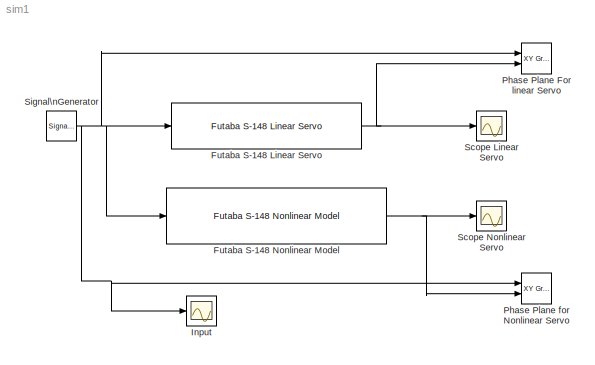
MODEL sim1
KIND model
CONFIG AbsTol = 1e-6
CONFIG FixedStep = auto
CONFIG MaxStep = .001
CONFIG RelTol = 1e-3
CONFIG Solver = ode45
CONFIG StartTime = 0.0
CONFIG StopTime = 1.0
BLOCK [Reference] Futaba S-148 Linear Servo  REF=AAE451Lib/Futaba S-148 Linear Servo
  Ports = [1, 1, 0, 0, 0]
  SourceBlock = AAE451Lib/Futaba S-148 Linear Servo
  SourceType = SubSystem
BLOCK [Reference] Futaba S-148 Nonlinear Model  REF=AAE451Lib/Futaba S-148 Nonlinear Model
  Ports = [1, 1, 0, 0, 0]
  SourceBlock = AAE451Lib/Futaba S-148 Nonlinear Model
  SourceType = SubSystem
BLOCK [Scope] Input
  Decimation = 1
  Floating = off
  Grid = on
  LimitMaxRows = on
  MaxRows = 5000
  Ports = [1, 0, 0, 0, 0]
  SampleInput = off
  SampleTime = 0
  SaveName = ScopeData
  SaveToWorkspace = off
  TickLabels = on
  TimeRange = 0.5
  YMax = 35
  YMin = -35
  ZoomMode = on
BLOCK [Reference] Phase Plane For linear Servo  REF=simulink/Sinks/XY Graph
  Ports = [2, 0, 0, 0, 0]
  SourceBlock = simulink/Sinks/XY Graph
  SourceType = XY scope.
  st = .01
  xmax = 35
  xmin = -35
  ymax = 35
  ymin = -35
BLOCK [Reference] Phase Plane for Nonlinear  Servo  REF=simulink/Sinks/XY Graph
  Ports = [2, 0, 0, 0, 0]
  SourceBlock = simulink/Sinks/XY Graph
  SourceType = XY scope.
  st = .001
  xmax = 35
  xmin = -35
  ymax = 35
  ymin = -35
BLOCK [Scope] Scope Linear  Servo
  Decimation = 1
  Floating = off
  Grid = on
  LimitMaxRows = on
  MaxRows = 5000
  Ports = [1, 0, 0, 0, 0]
  SampleInput = off
  SampleTime = 0
  SaveName = ScopeData
  SaveToWorkspace = off
  TickLabels = on
  TimeRange = 0.5
  YMax = 35
  YMin = -35
  ZoomMode = on
BLOCK [Scope] Scope Nonlinear  Servo
  Decimation = 1
  Floating = off
  Grid = on
  LimitMaxRows = on
  MaxRows = 5000
  Ports = [1, 0, 0, 0, 0]
  SampleInput = off
  SampleTime = 0
  SaveName = ScopeData
  SaveToWorkspace = off
  TickLabels = on
  TimeRange = 0.5
  YMax = 35
  YMin = -35
  ZoomMode = on
BLOCK [SignalGenerator] Signal\nGenerator
  Amplitude = 35
  Frequency = 40
  Units = rad/sec
  WaveForm = sine
NET Futaba S-148 Linear Servo:1 -> Phase Plane For linear Servo:2, Scope Linear  Servo:1
NET Futaba S-148 Nonlinear Model:1 -> Phase Plane for Nonlinear  Servo:2, Scope Nonlinear  Servo:1
NET Signal\nGenerator:1 -> Futaba S-148 Linear Servo:1, Futaba S-148 Nonlinear Model:1, Input:1, Phase Plane For linear Servo:1, Phase Plane for Nonlinear  Servo:1
note: NET lines group one-source signal fan-out (src -> all destinations, sorted); 1:1 wires keep LINE
